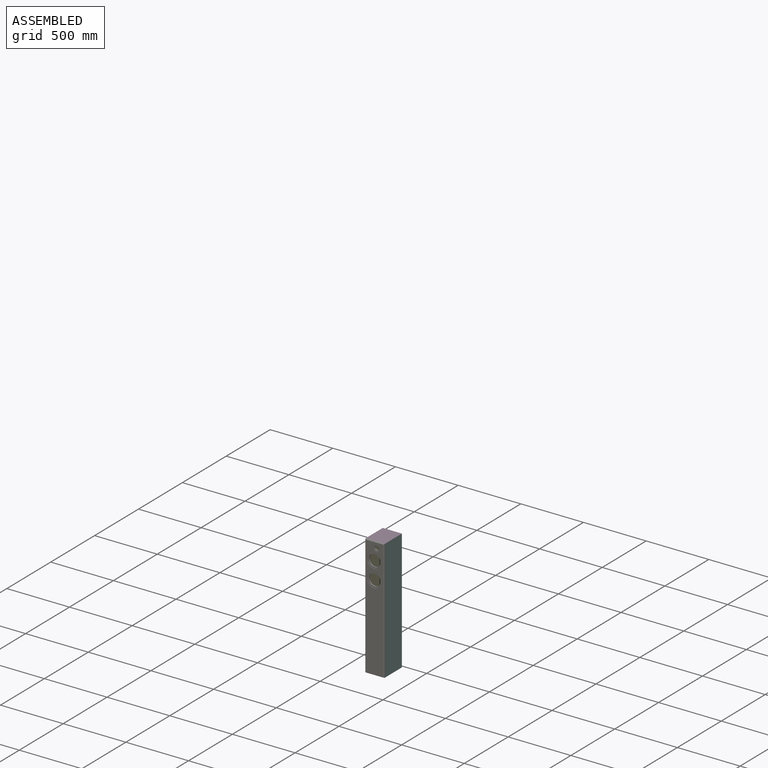
[diagram: assembled view]
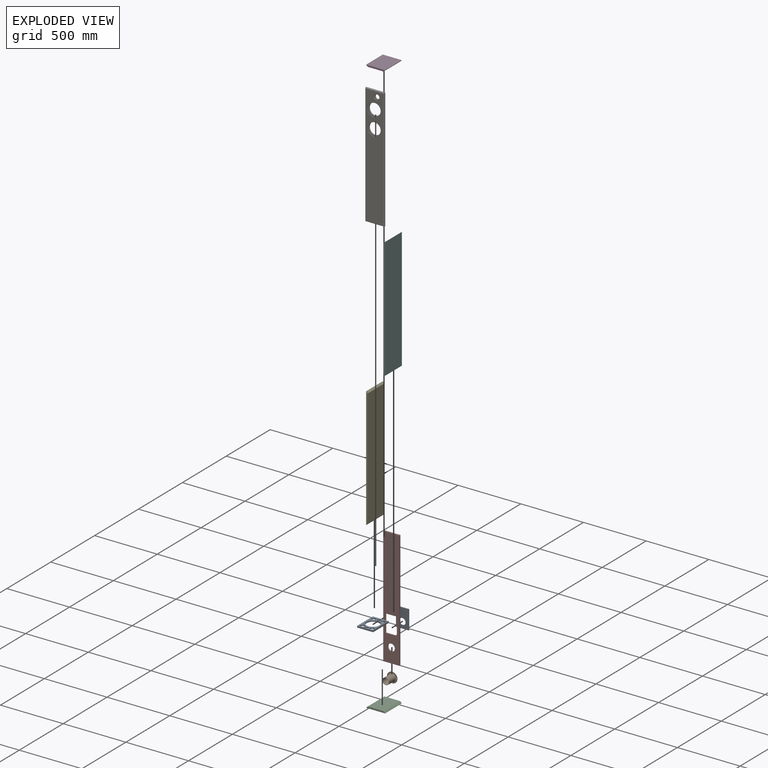
[diagram: exploded view]
GUIDED TOUR — FREECAD ASSEMBLY "Overnight Sensations TMM Cabinet"

This assembly has 9 components, labeled P0..P8 below (a component is one placed body or linked part; the same part can appear more than once), held together by 0 modeled joints plus 16 derived contact edges. A joint is a constraint between two components; its type names the relative motion it leaves free:
  CONTACT — a derived adjacency edge — the two components touch in the source model (clearance under 2% of the assembly's diagonal); it is measured from the geometry, not a modeled constraint.
Axis/direction vectors are unit vectors and 'through' points are millimeter coordinates, both in the assembly's world frame.

MATES
  1. CONTACT "contact_0_7": P0 <-> P7, contact direction (0.000, -1.000, 0.000) through (25.40, -6.35, 215.90) mm (derived from contact, not a modeled constraint)
  2. CONTACT "contact_0_8": P0 <-> P8, contact direction (0.000, 0.000, 1.000) through (27.02, -14.03, 368.30) mm (derived from contact, not a modeled constraint)
  3. CONTACT "contact_1_7": P1 <-> P7, contact direction (0.000, 0.000, 1.000) through (114.23, -3.18, 143.03) mm (derived from contact, not a modeled constraint)
  4. CONTACT "contact_2_4": P2 <-> P4, contact direction (0.000, 0.000, 1.000) through (0.00, 0.00, 0.00) mm (derived from contact, not a modeled constraint)
  5. CONTACT "contact_2_5": P2 <-> P5, contact direction (0.000, 0.000, 1.000) through (152.40, 0.00, 0.00) mm (derived from contact, not a modeled constraint)
  6. CONTACT "contact_2_6": P2 <-> P6, contact direction (0.000, 0.000, 1.000) through (0.00, -190.50, 0.00) mm (derived from contact, not a modeled constraint)
  7. CONTACT "contact_2_7": P2 <-> P7, contact direction (0.000, 0.000, 1.000) through (12.70, 0.00, 12.70) mm (derived from contact, not a modeled constraint)
  8. CONTACT "contact_3_4": P3 <-> P4, contact direction (0.000, 0.000, -1.000) through (0.00, 0.00, 965.20) mm (derived from contact, not a modeled constraint)
  9. CONTACT "contact_3_5": P3 <-> P5, contact direction (0.000, 0.000, -1.000) through (152.40, 0.00, 965.20) mm (derived from contact, not a modeled constraint)
  10. CONTACT "contact_3_6": P3 <-> P6, contact direction (0.000, -1.000, 0.000) through (152.40, -190.50, 965.20) mm (derived from contact, not a modeled constraint)
  11. CONTACT "contact_3_7": P3 <-> P7, contact direction (0.000, 0.000, -1.000) through (12.70, 0.00, 952.50) mm (derived from contact, not a modeled constraint)
  12. CONTACT "contact_4_6": P4 <-> P6, contact direction (0.000, 0.000, 1.000) through (0.00, -190.50, 0.00) mm (derived from contact, not a modeled constraint)
  13. CONTACT "contact_4_7": P4 <-> P7, contact direction (0.000, 0.000, -1.000) through (12.70, 0.00, 12.70) mm (derived from contact, not a modeled constraint)
  14. CONTACT "contact_5_6": P5 <-> P6, contact direction (0.000, -1.000, 0.000) through (152.40, -190.50, 965.20) mm (derived from contact, not a modeled constraint)
  15. CONTACT "contact_5_7": P5 <-> P7, contact direction (0.000, 0.000, -1.000) through (139.70, 0.00, 12.70) mm (derived from contact, not a modeled constraint)
  16. CONTACT "contact_7_8": P7 <-> P8, contact direction (0.000, -1.000, 0.000) through (32.96, -16.78, 365.26) mm (derived from contact, not a modeled constraint)

ASSEMBLY ORDER
  1. P7 — the base component [order verified]
  2. P8 [order verified]
  3. P4 [order verified]
  4. P5 [order verified]
  5. P0 [order verified]
  6. P6 [order verified]
  7. P1 [order verified]
  8. P2 [order verified]
  9. P3 [order verified]
(P1, P2, P4, P5 verified with a relaxed clearance tolerance: the source model stores slight part interference there.)
Order-tag legend:
  [order verified] — this step's position reverses a verified removal order: the component was checked to insert without passing through the ones already placed.

Of the 9 components, 9 carry a construction recipe — the FreeCAD feature program (sketches with constraints, then the solid features that consume them) that regenerates the part from scratch, quoted from this document or from the linked companion document it references; the rest are supplied as boundary geometry only. The tour below walks the components in assembly order: each is shown spotlighted twice — in the assembled view, then in the exploded view, where a leader line traces a displaced component back to its assembled socket (components that stay in place when exploded have no leader line; saturated green if recipe-attached, orange if geometry-only; every other component desaturated gray) — followed by its recipe or geometry summary and the mates that hold it.
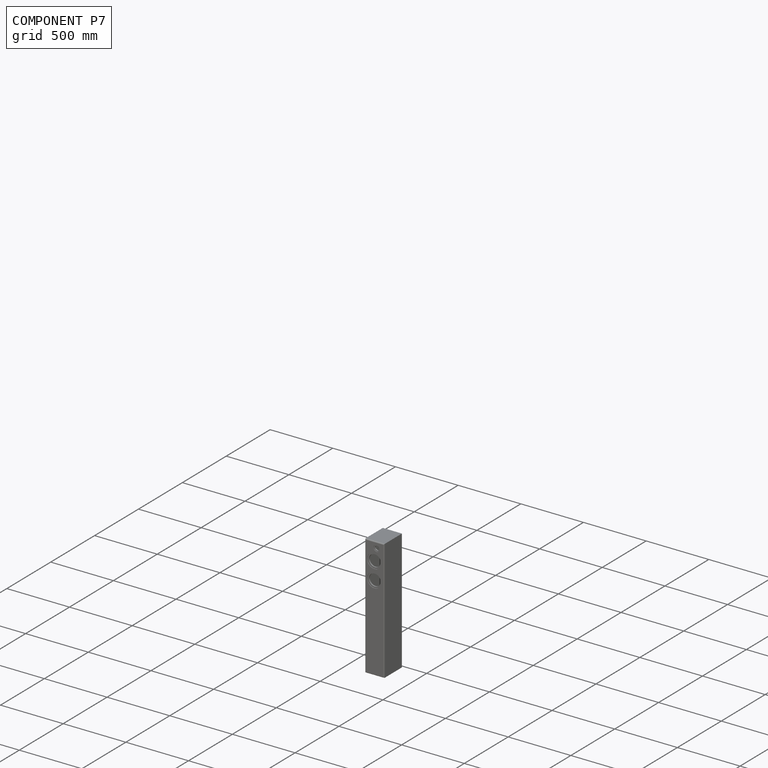
[diagram: component P7 — assembled]
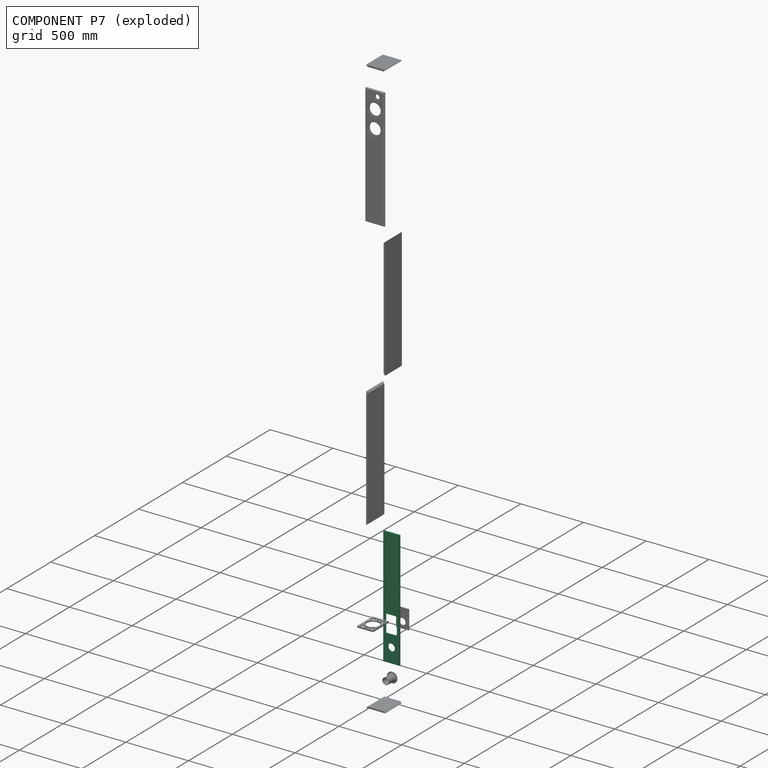
[diagram: component P7 — exploded]
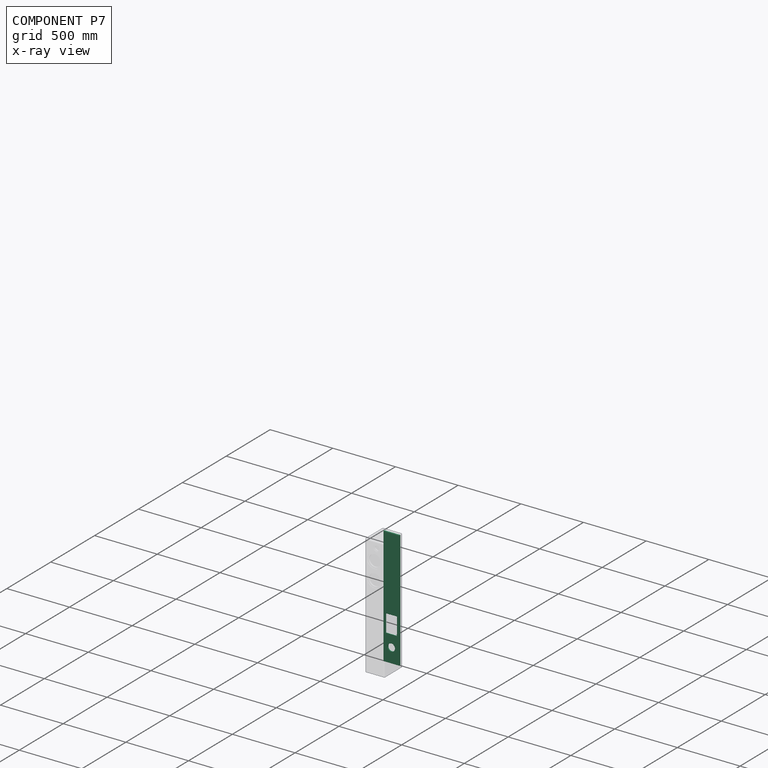
[diagram: component P7 — x-ray view]
COMPONENT P7 — recipe-attached ("back", modeled in this document).
Held by: resting contact with P0 (derived edge); resting contact with P1 (derived edge); resting contact with P2 (derived edge); resting contact with P3 (derived edge); resting contact with P4 (derived edge); resting contact with P5 (derived edge); resting contact with P8 (derived edge).
Construction recipe (the document's own serialized feature program — sketch geometry with constraints, then the solid features built on it; lengths are millimeters unless a unit is written):

FEATURE [Sketcher::SketchObject] Sketch011
  FullyConstrained = true
  MapMode = 5
  Placement = pos=(0,0,0) rot=(1,0,0;1.5708rad)
  expr: Constraints[10] = Spreadsheet.height - 2 * Spreadsheet.thickness
  expr: Constraints[9] = Spreadsheet.width - 2 * Spreadsheet.thickness
  sketch-geometry (4):
    g0: LineSegment StartX=0 StartY=0 StartZ=0 EndX=127 EndY=0 EndZ=0
    g1: LineSegment StartX=127 StartY=0 StartZ=0 EndX=127 EndY=939.8 EndZ=0
    g2: LineSegment StartX=127 StartY=939.8 StartZ=0 EndX=0 EndY=939.8 EndZ=0
    g3: LineSegment StartX=0 StartY=939.8 StartZ=0 EndX=0 EndY=0 EndZ=0
  constraints (11):
    c: Coincident(g0,g1)
    c: Coincident(g1,g2)
    c: Coincident(g2,g3)
    c: Coincident(g3,g0)
    c: Horizontal(g0)
    c: Horizontal(g2)
    c: Vertical(g1)
    c: Vertical(g3)
    c: Coincident(g0,g-1)
    c: DistanceX(g2,g2) = 127
    c: DistanceY(g1,g1) = 939.8
FEATURE [PartDesign::Pad] Pad006
  Direction = (0,-1,2e-16)
  Length = 12.7
  Length2 = 10
  Placement = pos=(0,0,0) rot=(1,0,0;1.5708rad)
  Profile = -> Sketch011
  ReferenceAxis = -> Sketch011 [N_Axis]
  Type = 0
  expr: Length = Spreadsheet.thickness
FEATURE [Sketcher::SketchObject] Sketch012
  FullyConstrained = true
  MapMode = 5
  Placement = pos=(0,-12.7,0) rot=(1,0,0;1.5708rad)
  expr: Constraints[0] = Spreadsheet.port_bottom - Spreadsheet.thickness
  expr: Constraints[1] = (Spreadsheet.width - Spreadsheet.thickness * 2) / 2
  expr: Constraints[2] = Spreadsheet.port_cutout_diameter
  expr: Constraints[4] = Spreadsheet.port_flange_diameter
  sketch-geometry (10):
    g0: Circle CenterX=63.5 CenterY=114.3 CenterZ=0 NormalX=0 NormalY=0 NormalZ=1 AngleXU=0 Radius=28.575
    g1: Circle CenterX=63.5 CenterY=114.3 CenterZ=0 NormalX=0 NormalY=0 NormalZ=1 AngleXU=0 Radius=41.275
    g2: LineSegment StartX=12.7 StartY=203.2 StartZ=0 EndX=114.3 EndY=203.2 EndZ=0
    g3: LineSegment StartX=114.3 StartY=203.2 StartZ=0 EndX=114.3 EndY=355.6 EndZ=0
    g4: LineSegment StartX=114.3 StartY=355.6 StartZ=0 EndX=12.7 EndY=355.6 EndZ=0
    g5: LineSegment StartX=12.7 StartY=355.6 StartZ=0 EndX=12.7 EndY=203.2 EndZ=0
    g6: LineSegment StartX=19.05 StartY=209.55 StartZ=0 EndX=107.95 EndY=209.55 EndZ=0
    g7: LineSegment StartX=107.95 StartY=209.55 StartZ=0 EndX=107.95 EndY=349.25 EndZ=0
    g8: LineSegment StartX=107.95 StartY=349.25 StartZ=0 EndX=19.05 EndY=349.25 EndZ=0
    g9: LineSegment StartX=19.05 StartY=349.25 StartZ=0 EndX=19.05 EndY=209.55 EndZ=0
  constraints (29):
    c: DistanceY(g-1,g0) = 114.3
    c: Distance(g0,g-2) = 63.5
    c: Diameter(g0) = 57.15
    c: Coincident(g1,g0)
    c: Diameter(g1) = 82.55
    c: Coincident(g2,g3)
    c: Coincident(g3,g4)
    c: Coincident(g4,g5)
    c: Coincident(g5,g2)
    c: Horizontal(g2)
    c: Horizontal(g4)
    c: Vertical(g3)
    c: Vertical(g5)
    c: DistanceX(g4,g4) = 101.6
    c: DistanceY(g5,g5) = 152.4
    c: DistanceY(g-1,g2) = 203.2
    c: Distance(g2,g-2) = 12.7
    c: Coincident(g6,g7)
    c: Coincident(g7,g8)
    c: Coincident(g8,g9)
    c: Coincident(g9,g6)
    c: Horizontal(g6)
    c: Horizontal(g8)
    c: Vertical(g7)
    c: Vertical(g9)
    c: Distance(g8,g5) = 6.35
    c: Distance(g2,g6) = 6.35
    c: Distance(g3,g7) = 6.35
    c: Distance(g4,g8) = 6.35
FEATURE [PartDesign::Pocket] Pocket003
  BaseFeature = -> Pad006
  Direction = (0,1,-2e-16)
  Length = 5
  Length2 = 5
  Placement = pos=(0,0,0) rot=(1,0,0;1.5708rad)
  Profile = -> Sketch012 [Edge1,Edge7,Edge10,Edge9,Edge8]
  ReferenceAxis = -> Sketch012 [N_Axis]
  Type = 1
FEATURE [PartDesign::Pocket] Pocket004
  BaseFeature = -> Pocket003
  Direction = (0,1,-2e-16)
  Length = 3.175
  Length2 = 5
  Placement = pos=(0,0,0) rot=(1,0,0;1.5708rad)
  Profile = -> Sketch012 [Edge2]
  ReferenceAxis = -> Sketch012 [N_Axis]
  Type = 0
  expr: Length = Spreadsheet.port_recess
FEATURE [PartDesign::Pocket] Pocket005
  BaseFeature = -> Pocket004
  Direction = (0,1,-2e-16)
  Length = 6.35
  Length2 = 5
  Placement = pos=(0,0,0) rot=(1,0,0;1.5708rad)
  Profile = -> Sketch012 [Edge6,Edge5,Edge4,Edge3]
  ReferenceAxis = -> Sketch012 [N_Axis]
  Type = 0
FEATURE [PartDesign::Body] Body006
  Group = -> [Sketch011,Pad006,Sketch012,Pocket003,Pocket004,Pocket005]
  Origin = -> Origin012
  Tip = -> Pocket005
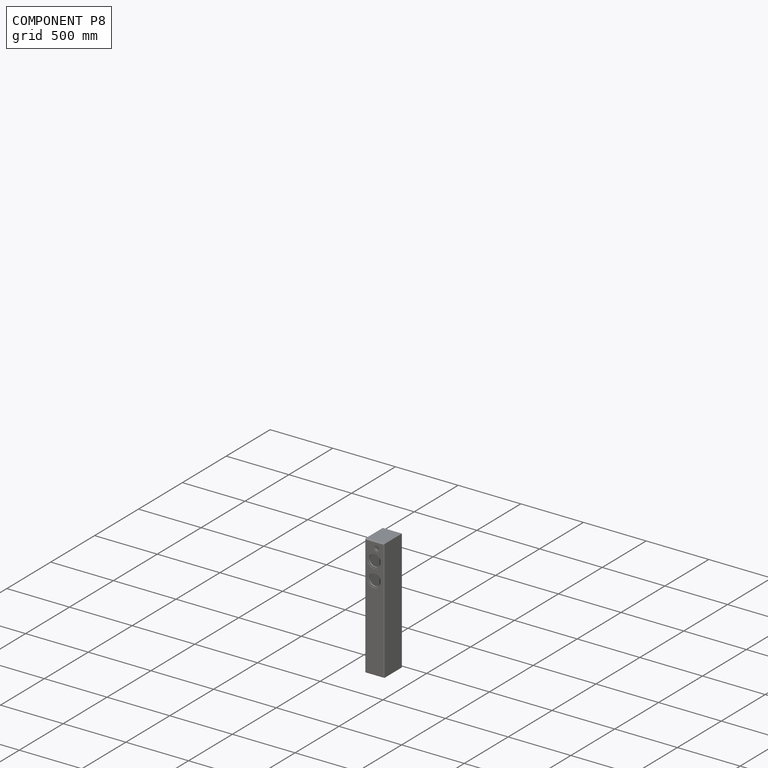
[diagram: component P8 — assembled]
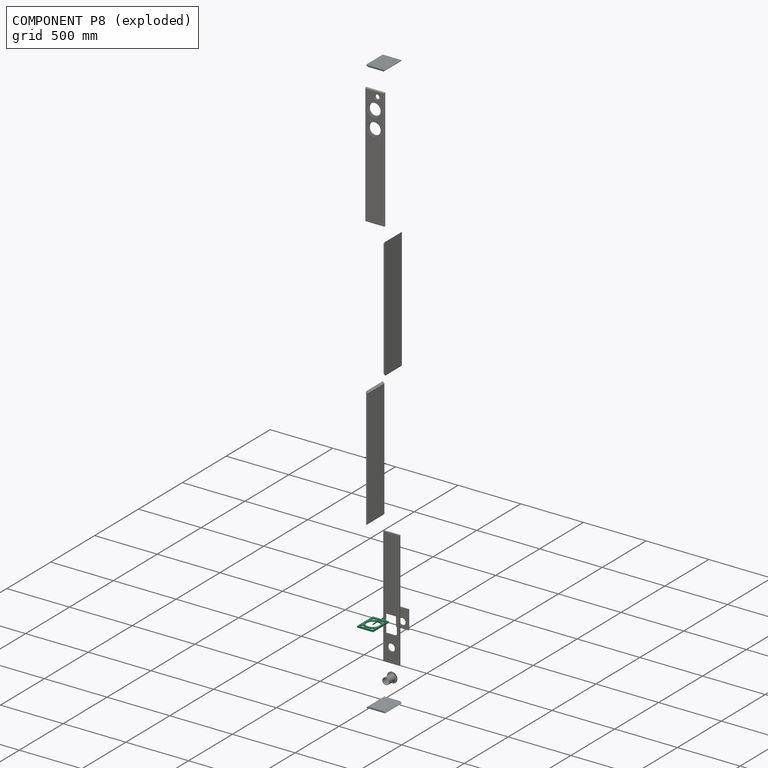
[diagram: component P8 — exploded]
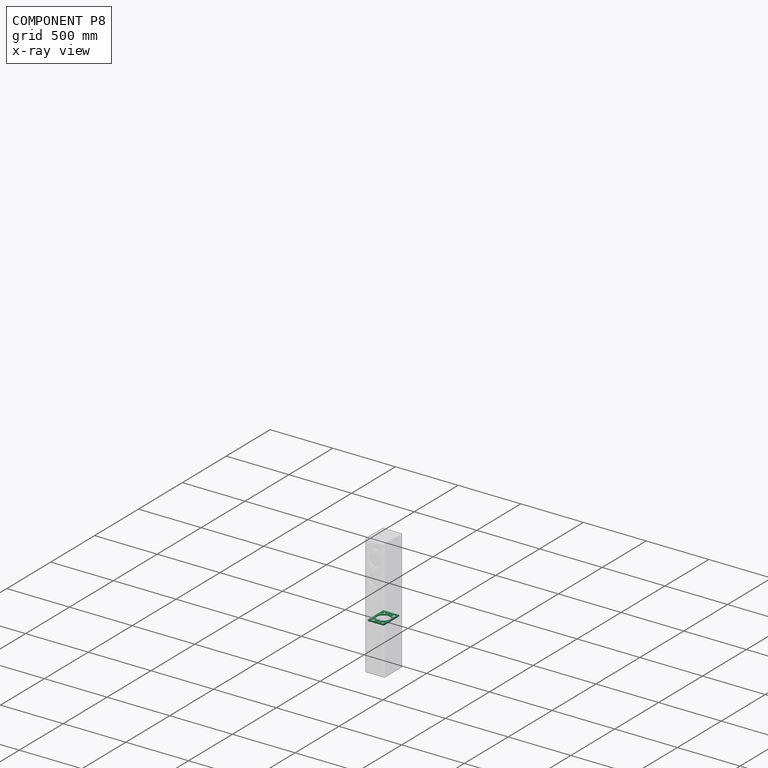
[diagram: component P8 — x-ray view]
COMPONENT P8 — recipe-attached ("window_brace", modeled in this document).
Held by: resting contact with P0 (derived edge); resting contact with P7 (derived edge).
Construction recipe (the document's own serialized feature program — sketch geometry with constraints, then the solid features built on it; lengths are millimeters unless a unit is written):

FEATURE [Sketcher::SketchObject] Sketch013
  FullyConstrained = true
  MapMode = 5
  sketch-geometry (14):
    g0: LineSegment StartX=0 StartY=0 StartZ=0 EndX=127 EndY=0 EndZ=0
    g1: LineSegment StartX=127 StartY=0 StartZ=0 EndX=127 EndY=177.8 EndZ=0
    g2: LineSegment StartX=127 StartY=177.8 StartZ=0 EndX=0 EndY=177.8 EndZ=0
    g3: LineSegment StartX=0 StartY=177.8 StartZ=0 EndX=0 EndY=0 EndZ=0
    g4: Circle CenterX=63.5 CenterY=88.9 CenterZ=0 NormalX=0 NormalY=0 NormalZ=1 AngleXU=0 Radius=50.8
    g5: Circle CenterX=25.4 CenterY=152.4 CenterZ=0 NormalX=0 NormalY=0 NormalZ=1 AngleXU=0 Radius=15.875
    g6: Circle CenterX=101.6 CenterY=152.4 CenterZ=0 NormalX=0 NormalY=0 NormalZ=1 AngleXU=0 Radius=15.875
    g7: Circle CenterX=25.4 CenterY=25.4 CenterZ=0 NormalX=0 NormalY=0 NormalZ=1 AngleXU=0 Radius=15.875
    g8: Circle CenterX=101.6 CenterY=25.4 CenterZ=0 NormalX=0 NormalY=0 NormalZ=1 AngleXU=0 Radius=15.875
    g9: Circle CenterX=63.5 CenterY=158.75 CenterZ=0 NormalX=0 NormalY=0 NormalZ=1 AngleXU=0 Radius=12.7
    g10: Circle CenterX=63.5 CenterY=19.05 CenterZ=0 NormalX=0 NormalY=0 NormalZ=1 AngleXU=0 Radius=12.7
    g11: LineSegment StartX=63.5 StartY=177.8 StartZ=0 EndX=63.5 EndY=0 EndZ=0
    g12: LineSegment StartX=63.5 StartY=139.7 StartZ=0 EndX=63.5 EndY=177.8 EndZ=0
    g13: LineSegment StartX=63.5 StartY=38.1 StartZ=0 EndX=63.5 EndY=0 EndZ=0
  constraints (37):
    c: Coincident(g0,g1)
    c: Coincident(g1,g2)
    c: Coincident(g2,g3)
    c: Coincident(g3,g0)
    c: Horizontal(g0)
    c: Horizontal(g2)
    c: Vertical(g1)
    c: Vertical(g3)
    c: Distance(g1,g3) = 127
    c: Distance(g0,g2) = 177.8
    c: Coincident(g0,g-1)
    c: Diameter(g4) = 101.6
    c: Symmetric(g2,g0,g4)
    c: Vertical(g7,g5)
    c: Horizontal(g5,g6)
    c: Vertical(g8,g6)
    c: Horizontal(g7,g8)
    c: Distance(g7,g0) = 25.4
    c: Distance(g5,g2) = 25.4
    c: Distance(g6,g1) = 25.4
    c: Distance(g5,g3) = 25.4
    c: Equal(g6,g5)
    c: Equal(g6,g7)
    c: Equal(g6,g8)
    c: Diameter(g6) = 31.75
    c: Diameter(g9) = 25.4
    c: Diameter(g10) = 25.4
    c: Vertical(g10,g9)
    c: Symmetric(g2,g2,g11)
    c: Symmetric(g0,g0,g11)
    c: PointOnObject(g9,g11)
    c: PointOnObject(g12,g4)
    c: Coincident(g12,g11)
    c: Symmetric(g12,g12,g9)
    c: PointOnObject(g13,g4)
    c: Coincident(g13,g11)
    c: Symmetric(g13,g11,g10)
FEATURE [PartDesign::Pad] Pad007
  Direction = (0,0,1)
  Length = 12.7
  Length2 = 10
  Profile = -> Sketch013
  ReferenceAxis = -> Sketch013 [N_Axis]
  Type = 0
FEATURE [PartDesign::Fillet] Fillet
  Base = -> Pad007 [Face7,Face11,Face6,Face5,Face8,Face10,Face9]
  BaseFeature = -> Pad007
  Radius = 3.048
  SupportTransform = false
  UseAllEdges = false
FEATURE [PartDesign::Body] Body007
  Group = -> [Sketch013,Pad007,Fillet]
  Origin = -> Origin014
  Tip = -> Fillet
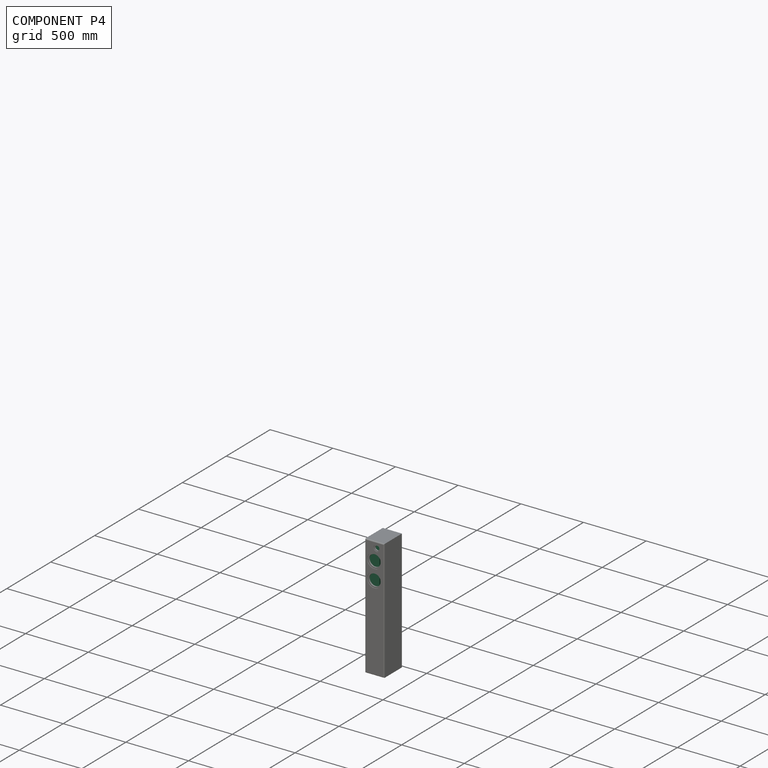
[diagram: component P4 — assembled]
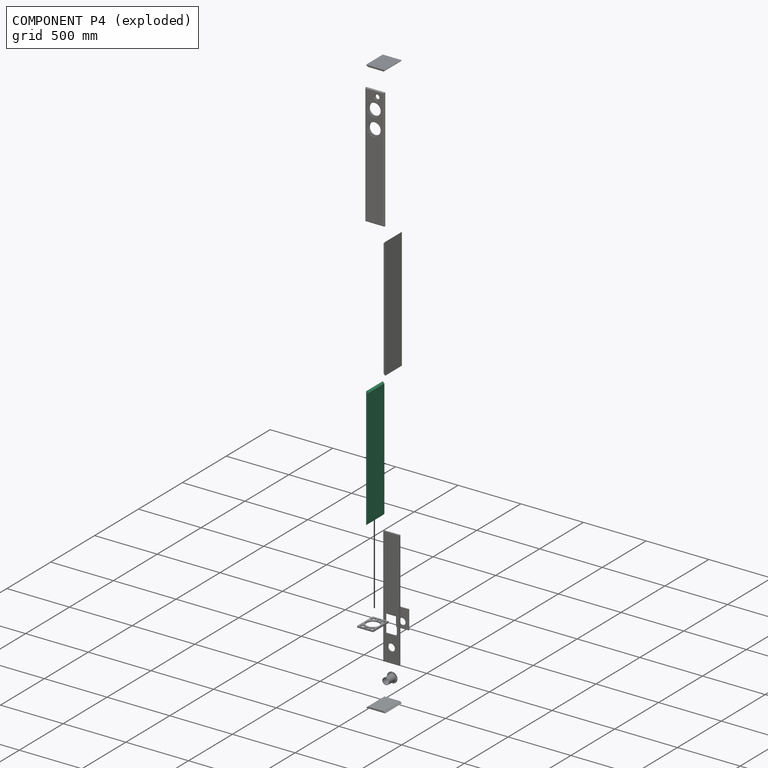
[diagram: component P4 — exploded]
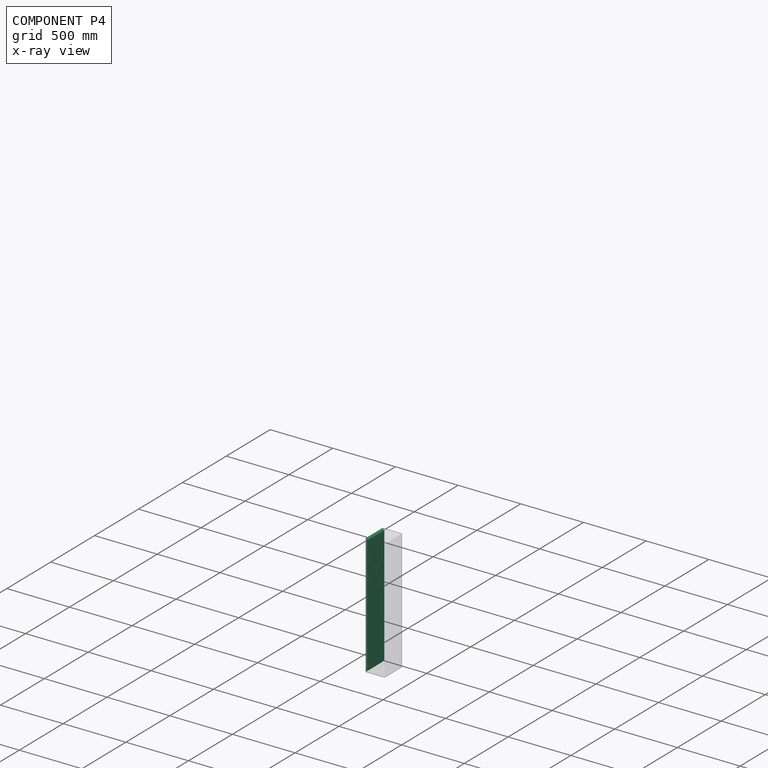
[diagram: component P4 — x-ray view]
COMPONENT P4 — recipe-attached ("left", modeled in this document).
Held by: resting contact with P2 (derived edge); resting contact with P3 (derived edge); resting contact with P6 (derived edge); resting contact with P7 (derived edge).
Construction recipe (the document's own serialized feature program — sketch geometry with constraints, then the solid features built on it; lengths are millimeters unless a unit is written):

FEATURE [Sketcher::SketchObject] Sketch006
  FullyConstrained = true
  MapMode = 5
  Placement = pos=(0,0,0) rot=(1,0,0;1.5708rad)
  expr: Constraints[1] = Spreadsheet.height
  expr: Constraints[2] = Spreadsheet.thickness
  expr: Constraints[6] = Spreadsheet.thickness
  sketch-geometry (4):
    g0: LineSegment StartX=0 StartY=965.2 StartZ=0 EndX=0 EndY=0 EndZ=0
    g1: LineSegment StartX=0 StartY=0 StartZ=0 EndX=12.7 EndY=12.7 EndZ=0
    g2: LineSegment StartX=0 StartY=965.2 StartZ=0 EndX=12.7 EndY=952.5 EndZ=0
    g3: LineSegment StartX=12.7 StartY=12.7 StartZ=0 EndX=12.7 EndY=952.5 EndZ=0
  constraints (11):
    c: Vertical(g0)
    c: DistanceY(g0,g0) = 965.2
    c: DistanceY(g2,g0) = 12.7
    c: Coincident(g3,g1)
    c: Coincident(g3,g2)
    c: Vertical(g3)
    c: DistanceX(g0,g1) = 12.7
    c: Angle(g1,g0) = 0.785398
    c: Coincident(g0,g2)
    c: Coincident(g0,g1)
    c: Coincident(g0,g-1)
FEATURE [PartDesign::Pad] Pad
  Direction = (0,-1,2e-16)
  Length = 190.5
  Length2 = 10
  Placement = pos=(0,0,0) rot=(1,0,0;1.5708rad)
  Profile = -> Sketch006
  ReferenceAxis = -> Sketch006 [N_Axis]
  Type = 0
  expr: Length = Spreadsheet.depth - Spreadsheet.thickness
FEATURE [PartDesign::Body] Body
  Group = -> [Sketch006,Pad]
  Origin = -> Origin006
  Tip = -> Pad
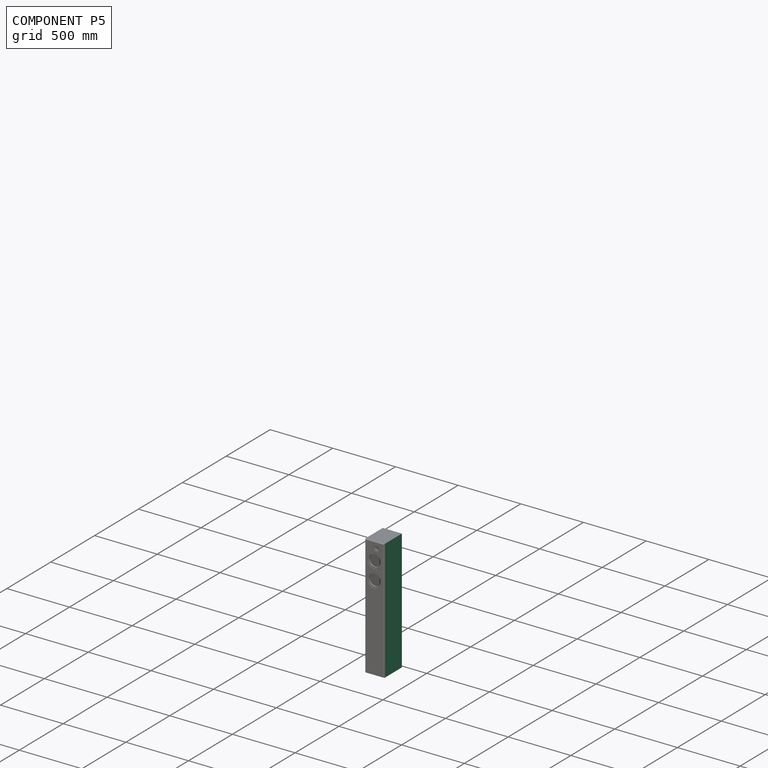
[diagram: component P5 — assembled]
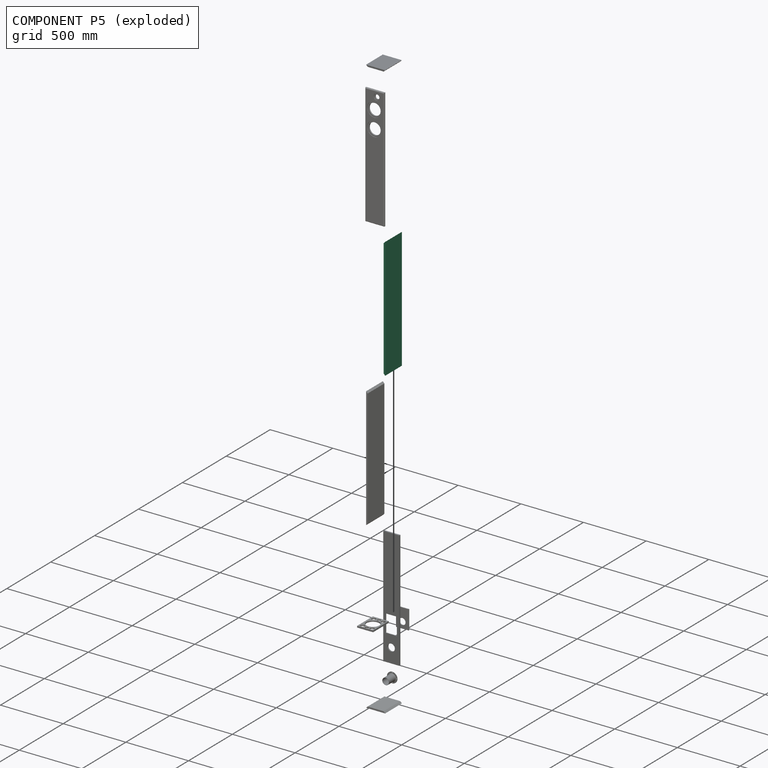
[diagram: component P5 — exploded]
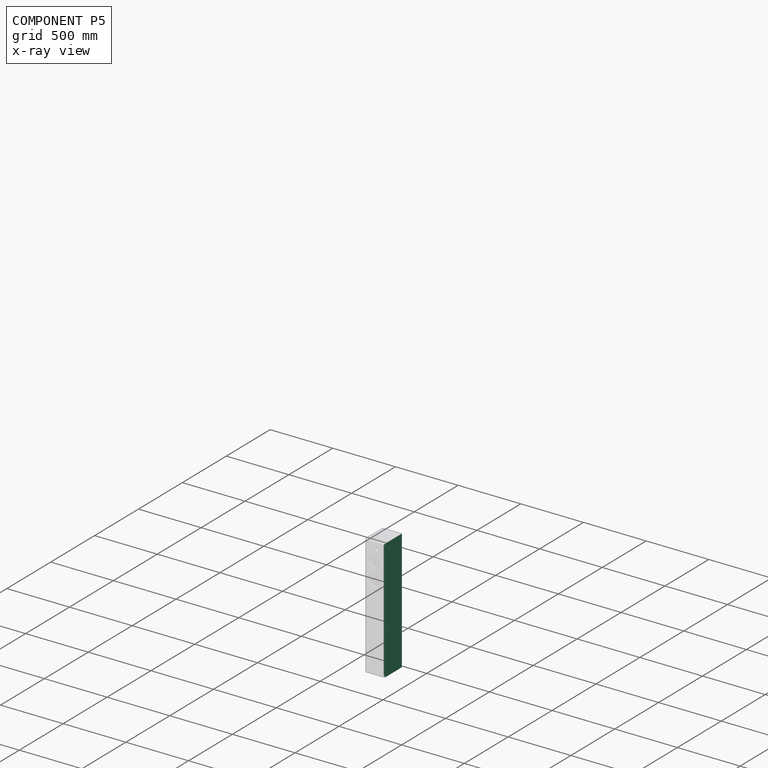
[diagram: component P5 — x-ray view]
COMPONENT P5 — recipe-attached ("right", modeled in this document).
Held by: resting contact with P2 (derived edge); resting contact with P3 (derived edge); resting contact with P6 (derived edge); resting contact with P7 (derived edge).
Construction recipe (the document's own serialized feature program — sketch geometry with constraints, then the solid features built on it; lengths are millimeters unless a unit is written):

FEATURE [Sketcher::SketchObject] Sketch007
  FullyConstrained = true
  MapMode = 5
  Placement = pos=(0,0,0) rot=(1,0,0;1.5708rad)
  expr: Constraints[1] = Spreadsheet.height
  expr: Constraints[2] = Spreadsheet.thickness
  expr: Constraints[6] = Spreadsheet.thickness
  sketch-geometry (4):
    g0: LineSegment StartX=0 StartY=965.2 StartZ=0 EndX=0 EndY=0 EndZ=0
    g1: LineSegment StartX=0 StartY=0 StartZ=0 EndX=12.7 EndY=12.7 EndZ=0
    g2: LineSegment StartX=0 StartY=965.2 StartZ=0 EndX=12.7 EndY=952.5 EndZ=0
    g3: LineSegment StartX=12.7 StartY=12.7 StartZ=0 EndX=12.7 EndY=952.5 EndZ=0
  constraints (11):
    c: Vertical(g0)
    c: DistanceY(g0,g0) = 965.2
    c: DistanceY(g2,g0) = 12.7
    c: Coincident(g3,g1)
    c: Coincident(g3,g2)
    c: Vertical(g3)
    c: DistanceX(g0,g1) = 12.7
    c: Angle(g1,g0) = 0.785398
    c: Coincident(g0,g2)
    c: Coincident(g0,g1)
    c: Coincident(g0,g-1)
FEATURE [PartDesign::Pad] Pad004
  Direction = (0,-1,2e-16)
  Length = 190.5
  Length2 = 10
  Placement = pos=(0,0,0) rot=(1,0,0;1.5708rad)
  Profile = -> Sketch007
  ReferenceAxis = -> Sketch007 [N_Axis]
  Type = 0
  expr: Length = Spreadsheet.depth - Spreadsheet.thickness
FEATURE [PartDesign::Body] Body004
  Group = -> [Sketch007,Pad004]
  Origin = -> Origin008
  Tip = -> Pad004
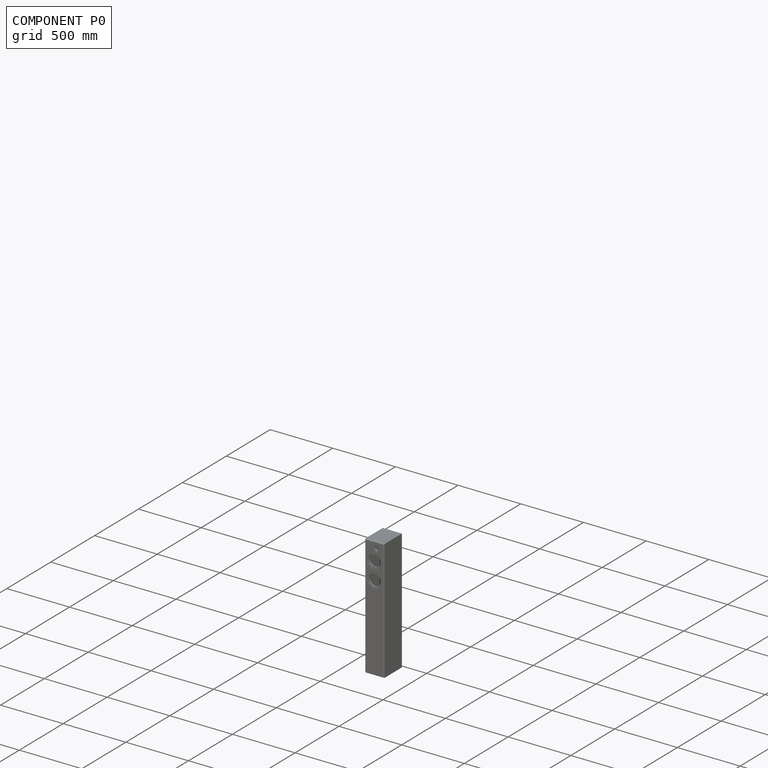
[diagram: component P0 — assembled]
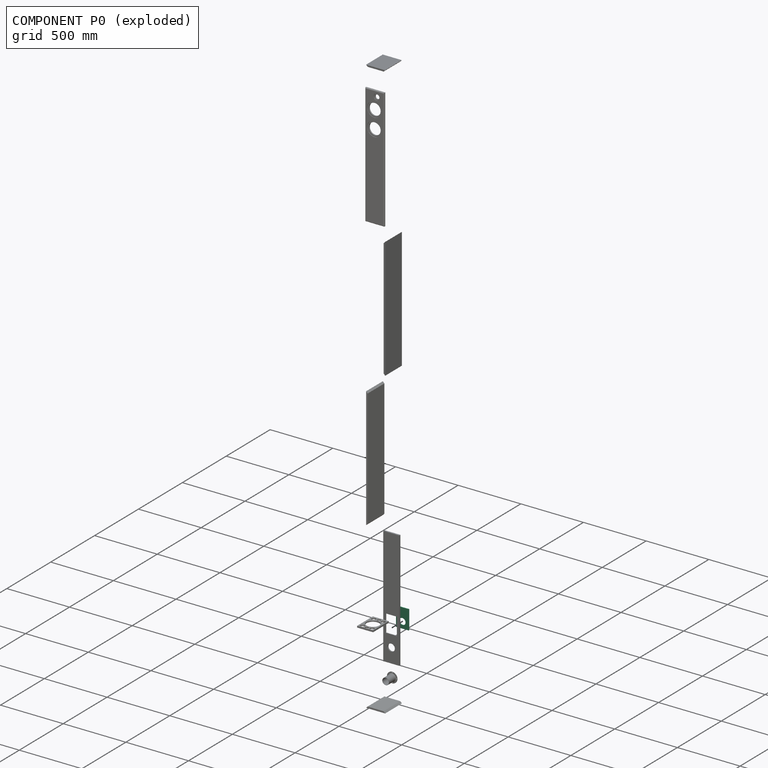
[diagram: component P0 — exploded]
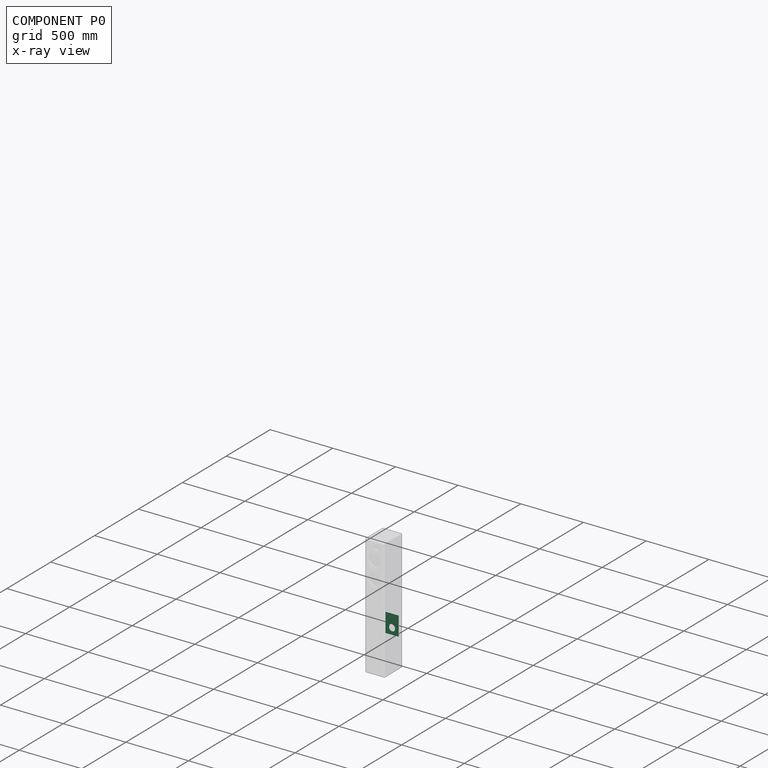
[diagram: component P0 — x-ray view]
COMPONENT P0 — recipe-attached ("terminal_cover", modeled in this document).
Held by: resting contact with P7 (derived edge); resting contact with P8 (derived edge).
Construction recipe (the document's own serialized feature program — sketch geometry with constraints, then the solid features built on it; lengths are millimeters unless a unit is written):

FEATURE [Sketcher::SketchObject] Sketch
  FullyConstrained = true
  MapMode = 5
  Placement = pos=(0,0,0) rot=(1,0,0;1.5708rad)
  sketch-geometry (5):
    g0: LineSegment StartX=0 StartY=0 StartZ=0 EndX=101.6 EndY=0 EndZ=0
    g1: LineSegment StartX=101.6 StartY=0 StartZ=0 EndX=101.6 EndY=152.4 EndZ=0
    g2: LineSegment StartX=101.6 StartY=152.4 StartZ=0 EndX=0 EndY=152.4 EndZ=0
    g3: LineSegment StartX=0 StartY=152.4 StartZ=0 EndX=0 EndY=0 EndZ=0
    g4: Circle CenterX=50.8 CenterY=50.8 CenterZ=0 NormalX=0 NormalY=0 NormalZ=1 AngleXU=0 Radius=25.4
  constraints (14):
    c: Coincident(g0,g1)
    c: Coincident(g1,g2)
    c: Coincident(g2,g3)
    c: Coincident(g3,g0)
    c: Horizontal(g0)
    c: Horizontal(g2)
    c: Vertical(g1)
    c: Vertical(g3)
    c: Distance(g1,g3) = 101.6
    c: Distance(g0,g2) = 152.4
    c: Coincident(g0,g-1)
    c: Diameter(g4) = 50.8
    c: DistanceY(g-1,g4) = 50.8
    c: Distance(g4,g1) = 50.8
FEATURE [PartDesign::Pad] Pad008
  Direction = (0,-1,2e-16)
  Length = 6.35
  Length2 = 10
  Placement = pos=(0,0,0) rot=(1,0,0;1.5708rad)
  Profile = -> Sketch
  ReferenceAxis = -> Sketch [N_Axis]
  Type = 0
FEATURE [PartDesign::Body] Body008  label="terminal_cover"
  Group = -> [Sketch,Pad008]
  Origin = -> Origin015
  Placement = pos=(25.4,0,215.9) rot=(0,0,1;0rad)
  Tip = -> Pad008
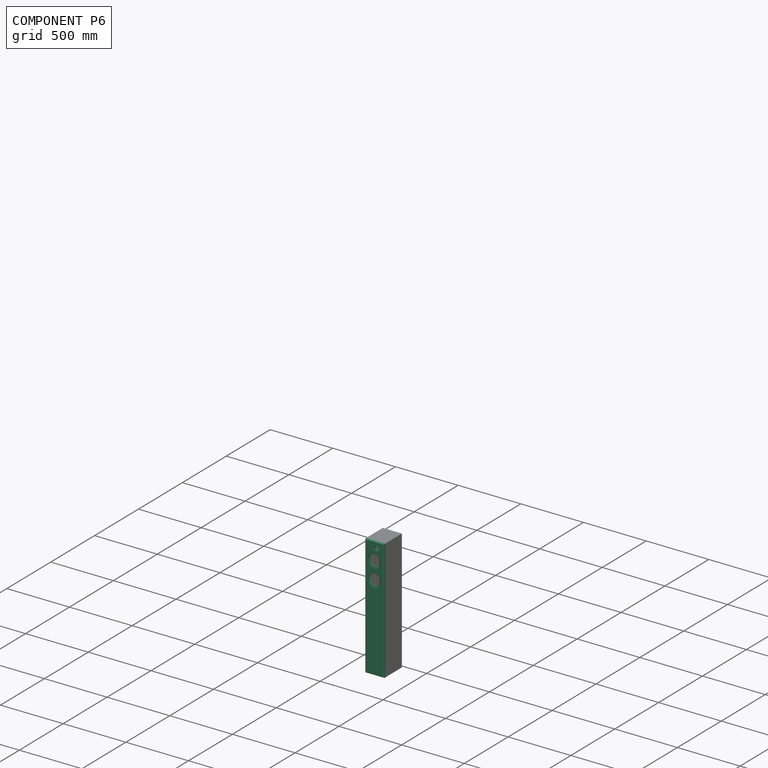
[diagram: component P6 — assembled]
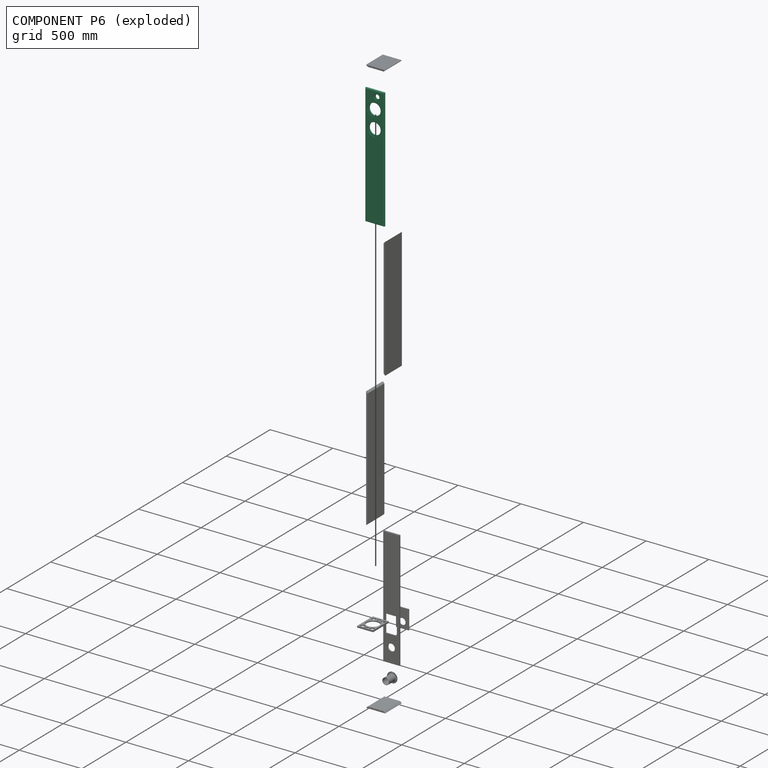
[diagram: component P6 — exploded]
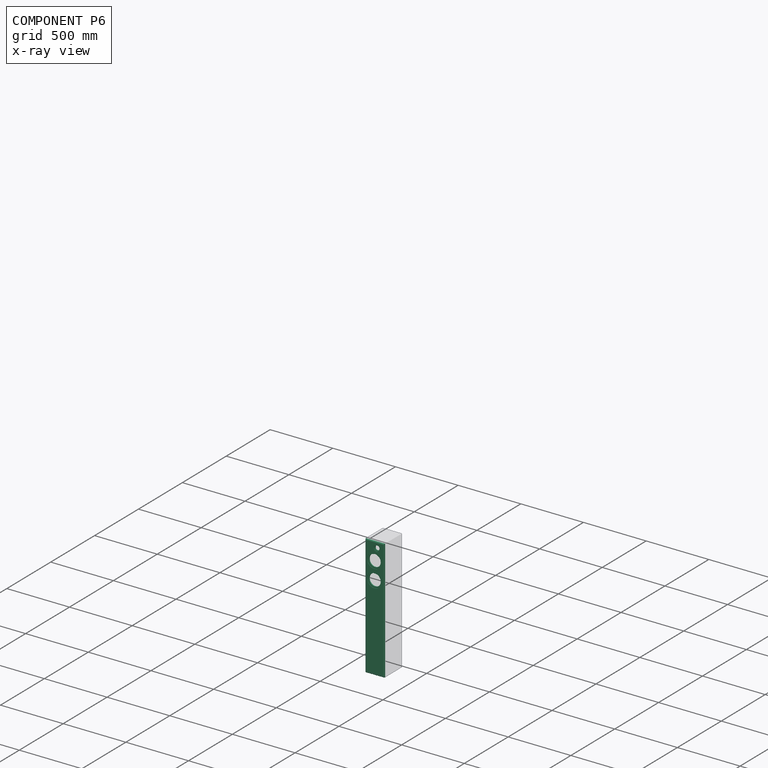
[diagram: component P6 — x-ray view]
COMPONENT P6 — recipe-attached ("baffle", modeled in this document).
Held by: resting contact with P2 (derived edge); resting contact with P3 (derived edge); resting contact with P4 (derived edge); resting contact with P5 (derived edge).
Construction recipe (the document's own serialized feature program — sketch geometry with constraints, then the solid features built on it; lengths are millimeters unless a unit is written):

FEATURE [Sketcher::SketchObject] Sketch009
  FullyConstrained = true
  MapMode = 5
  Placement = pos=(0,-12.7,0) rot=(1,0,0;1.5708rad)
  expr: Constraints[10] = Spreadsheet.height
  expr: Constraints[11] = Spreadsheet.tweeter_cutout
  expr: Constraints[12] = Spreadsheet.driver_cutout
  expr: Constraints[13] = Spreadsheet.driver_cutout
  expr: Constraints[14] = Spreadsheet.tweeter_top
  expr: Constraints[15] = Spreadsheet.mid_top
  expr: Constraints[16] = Spreadsheet.low_top
  expr: Constraints[17] = Spreadsheet.width * 0.625
  expr: Constraints[18] = Spreadsheet.tweeter_diameter
  expr: Constraints[21] = Spreadsheet.driver_diameter
  expr: Constraints[23] = Spreadsheet.driver_diameter
  expr: Constraints[24] = Spreadsheet.width / 2
  expr: Constraints[25] = Spreadsheet.width / 2
  expr: Constraints[9] = Spreadsheet.width
  sketch-geometry (10):
    g0: LineSegment StartX=0 StartY=0 StartZ=0 EndX=152.4 EndY=0 EndZ=0
    g1: LineSegment StartX=152.4 StartY=0 StartZ=0 EndX=152.4 EndY=965.2 EndZ=0
    g2: LineSegment StartX=152.4 StartY=965.2 StartZ=0 EndX=0 EndY=965.2 EndZ=0
    g3: LineSegment StartX=0 StartY=965.2 StartZ=0 EndX=0 EndY=0 EndZ=0
    g4: Circle CenterX=76.2 CenterY=825.5 CenterZ=0 NormalX=0 NormalY=0 NormalZ=1 AngleXU=0 Radius=46.482
    g5: Circle CenterX=76.2 CenterY=685.8 CenterZ=0 NormalX=0 NormalY=0 NormalZ=1 AngleXU=0 Radius=46.482
    g6: Circle CenterX=95.25 CenterY=920.75 CenterZ=0 NormalX=0 NormalY=0 NormalZ=1 AngleXU=0 Radius=17.5895
    g7: Circle CenterX=95.25 CenterY=920.75 CenterZ=0 NormalX=0 NormalY=0 NormalZ=1 AngleXU=0 Radius=25.4
    g8: Circle CenterX=76.2 CenterY=825.5 CenterZ=0 NormalX=0 NormalY=0 NormalZ=1 AngleXU=0 Radius=58.293
    g9: Circle CenterX=76.2 CenterY=685.8 CenterZ=0 NormalX=0 NormalY=0 NormalZ=1 AngleXU=0 Radius=58.293
  constraints (26):
    c: Coincident(g0,g1)
    c: Coincident(g1,g2)
    c: Coincident(g2,g3)
    c: Coincident(g3,g0)
    c: Horizontal(g0)
    c: Horizontal(g2)
    c: Vertical(g1)
    c: Vertical(g3)
    c: Coincident(g0,g-1)
    c: DistanceX(g2,g2) = 152.4
    c: DistanceY(g1,g1) = 965.2
    c: Diameter(g6) = 35.179
    c: Diameter(g4) = 92.964
    c: Diameter(g5) = 92.964
    c: Distance(g6,g2) = 44.45
    c: Distance(g4,g2) = 139.7
    c: Distance(g5,g2) = 279.4
    c: Distance(g6,g3) = 95.25
    c: Diameter(g7) = 50.8
    c: Coincident(g7,g6)
    c: Coincident(g8,g4)
    c: Diameter(g8) = 116.586
    c: Coincident(g9,g5)
    c: Diameter(g9) = 116.586
    c: DistanceX(g2,g4) = 76.2
    c: Distance(g5,g3) = 76.2
FEATURE [Sketcher::SketchObject] Sketch010
  FullyConstrained = true
  MapMode = 5
  Placement = pos=(0,0,0) rot=(1,0,0;1.5708rad)
  expr: Constraints[10] = Spreadsheet.height
  expr: Constraints[9] = Spreadsheet.width
  sketch-geometry (4):
    g0: LineSegment StartX=0 StartY=0 StartZ=0 EndX=152.4 EndY=0 EndZ=0
    g1: LineSegment StartX=152.4 StartY=0 StartZ=0 EndX=152.4 EndY=965.2 EndZ=0
    g2: LineSegment StartX=152.4 StartY=965.2 StartZ=0 EndX=0 EndY=965.2 EndZ=0
    g3: LineSegment StartX=0 StartY=965.2 StartZ=0 EndX=0 EndY=0 EndZ=0
  constraints (11):
    c: Coincident(g0,g1)
    c: Coincident(g1,g2)
    c: Coincident(g2,g3)
    c: Coincident(g3,g0)
    c: Horizontal(g0)
    c: Horizontal(g2)
    c: Vertical(g1)
    c: Vertical(g3)
    c: Coincident(g0,g-1)
    c: DistanceX(g2,g2) = 152.4
    c: DistanceY(g1,g1) = 965.2
FEATURE [PartDesign::Pad] Pad005
  Direction = (0,-1,2e-16)
  Length = 12.7
  Length2 = 10
  Placement = pos=(0,0,0) rot=(1,0,0;1.5708rad)
  Profile = -> Sketch010
  ReferenceAxis = -> Sketch010 [N_Axis]
  Type = 0
  expr: Length = Spreadsheet.thickness
FEATURE [PartDesign::Pocket] Pocket
  BaseFeature = -> Pad005
  Direction = (0,1,-2e-16)
  Length = 5
  Length2 = 5
  Placement = pos=(0,0,0) rot=(1,0,0;1.5708rad)
  Profile = -> Sketch009 [Edge7,Edge5,Edge6]
  ReferenceAxis = -> Sketch009 [N_Axis]
  Type = 1
FEATURE [PartDesign::Pocket] Pocket001
  BaseFeature = -> Pocket
  Direction = (0,1,-2e-16)
  Length = 3.175
  Length2 = 5
  Placement = pos=(0,0,0) rot=(1,0,0;1.5708rad)
  Profile = -> Sketch009 [Edge9,Edge10]
  ReferenceAxis = -> Sketch009 [N_Axis]
  Type = 0
  expr: Length = Spreadsheet.driver_recess
FEATURE [PartDesign::Pocket] Pocket002
  BaseFeature = -> Pocket001
  Direction = (0,1,-2e-16)
  Length = 3.175
  Length2 = 5
  Placement = pos=(0,0,0) rot=(1,0,0;1.5708rad)
  Profile = -> Sketch009 [Edge8]
  ReferenceAxis = -> Sketch009 [N_Axis]
  Type = 0
  expr: Length = Spreadsheet.tweeter_recess
FEATURE [PartDesign::Fillet] Fillet002
  Base = -> Pocket002 [Edge15,Edge10,Edge7,Edge4]
  BaseFeature = -> Pocket002
  Placement = pos=(0,0,0) rot=(1,0,0;1.5708rad)
  Radius = 6.35
  SupportTransform = false
  UseAllEdges = false
FEATURE [PartDesign::Body] Body005
  Group = -> [Sketch009,Sketch010,Pad005,Pocket,Pocket001,Pocket002,Fillet002]
  Origin = -> Origin010
  Tip = -> Fillet002
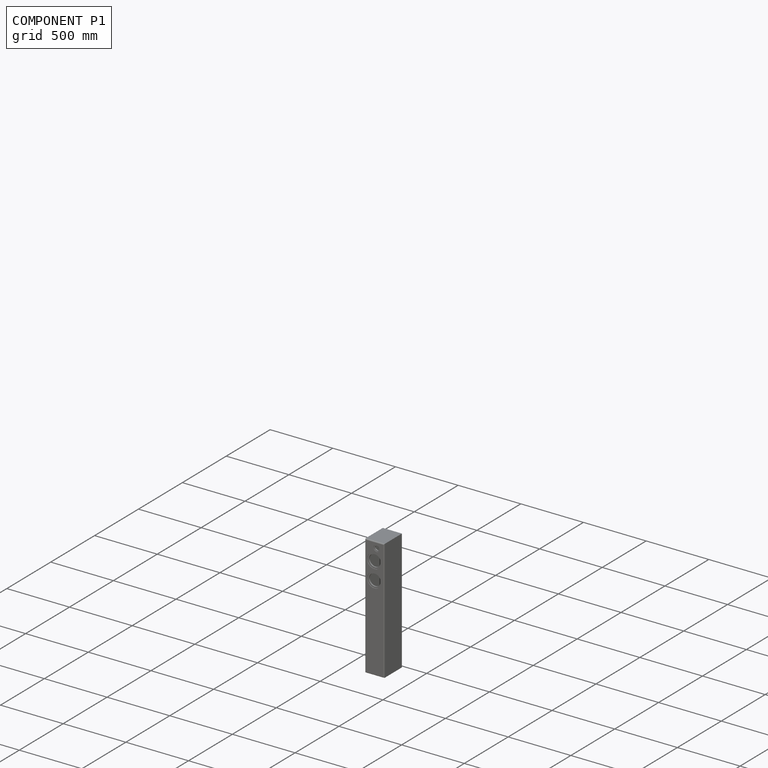
[diagram: component P1 — assembled]
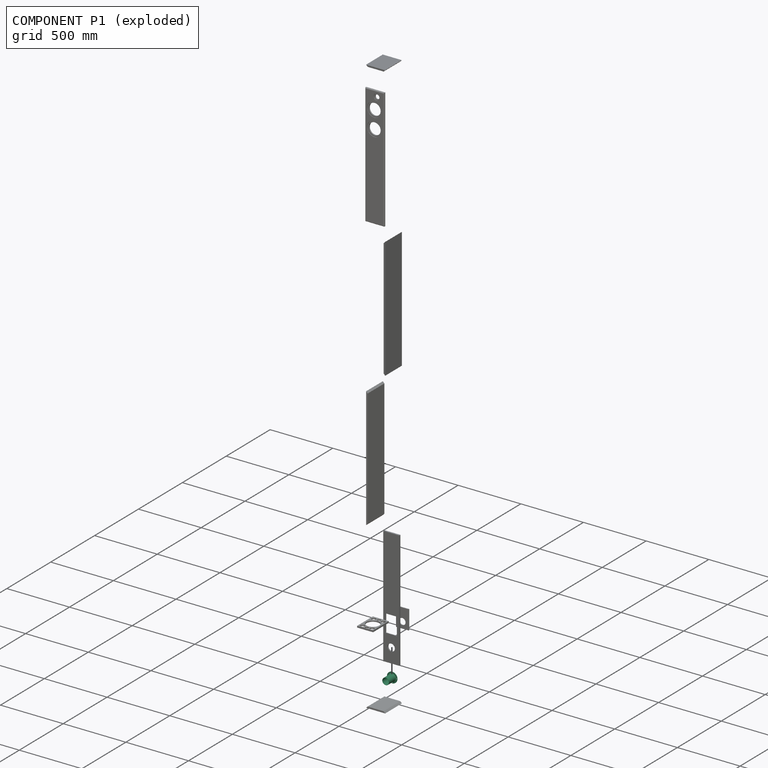
[diagram: component P1 — exploded]
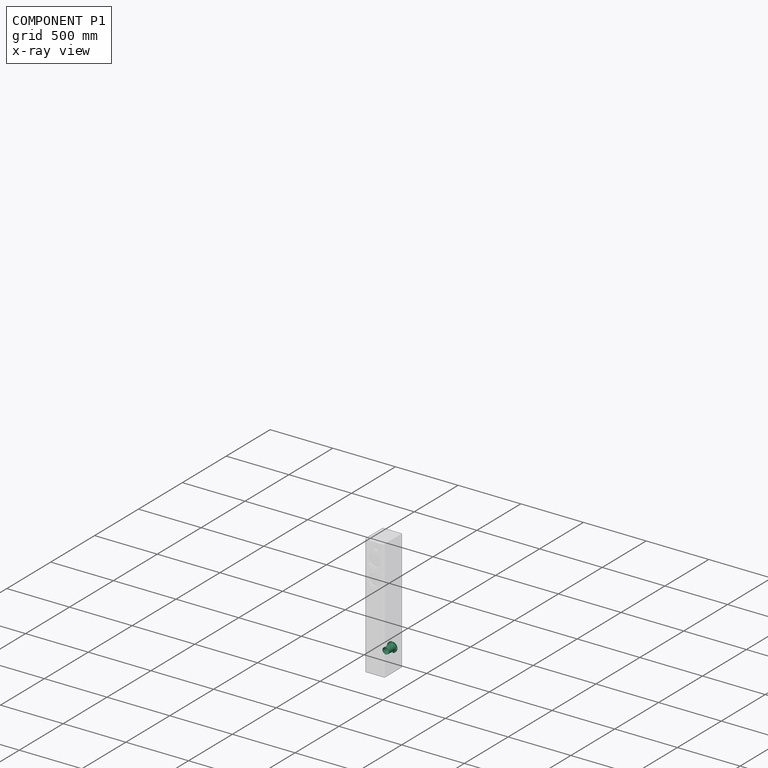
[diagram: component P1 — x-ray view]
COMPONENT P1 — recipe-attached ("2x3 port", modeled in this document).
Held by: resting contact with P7 (derived edge).
Construction recipe (the document's own serialized feature program — sketch geometry with constraints, then the solid features built on it; lengths are millimeters unless a unit is written):

FEATURE [Sketcher::SketchObject] Sketch006
  FullyConstrained = true
  MapMode = 5
  Placement = pos=(0,0,0) rot=(1,0,0;1.5708rad)
  expr: Constraints[1] = Spreadsheet.height
  expr: Constraints[2] = Spreadsheet.thickness
  expr: Constraints[6] = Spreadsheet.thickness
  sketch-geometry (4):
    g0: LineSegment StartX=0 StartY=965.2 StartZ=0 EndX=0 EndY=0 EndZ=0
    g1: LineSegment StartX=0 StartY=0 StartZ=0 EndX=12.7 EndY=12.7 EndZ=0
    g2: LineSegment StartX=0 StartY=965.2 StartZ=0 EndX=12.7 EndY=952.5 EndZ=0
    g3: LineSegment StartX=12.7 StartY=12.7 StartZ=0 EndX=12.7 EndY=952.5 EndZ=0
  constraints (11):
    c: Vertical(g0)
    c: DistanceY(g0,g0) = 965.2
    c: DistanceY(g2,g0) = 12.7
    c: Coincident(g3,g1)
    c: Coincident(g3,g2)
    c: Vertical(g3)
    c: DistanceX(g0,g1) = 12.7
    c: Angle(g1,g0) = 0.785398
    c: Coincident(g0,g2)
    c: Coincident(g0,g1)
    c: Coincident(g0,g-1)
FEATURE [PartDesign::Pad] Pad
  Direction = (0,-1,2e-16)
  Length = 190.5
  Length2 = 10
  Placement = pos=(0,0,0) rot=(1,0,0;1.5708rad)
  Profile = -> Sketch006
  ReferenceAxis = -> Sketch006 [N_Axis]
  Type = 0
  expr: Length = Spreadsheet.depth - Spreadsheet.thickness
FEATURE [PartDesign::Body] Body
  Group = -> [Sketch006,Pad]
  Origin = -> Origin006
  Tip = -> Pad
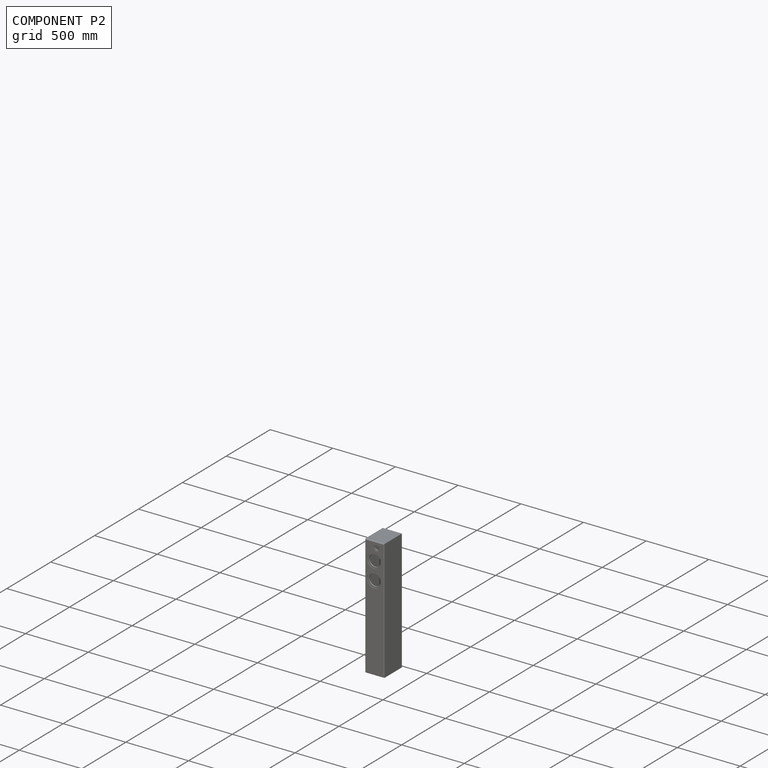
[diagram: component P2 — assembled]
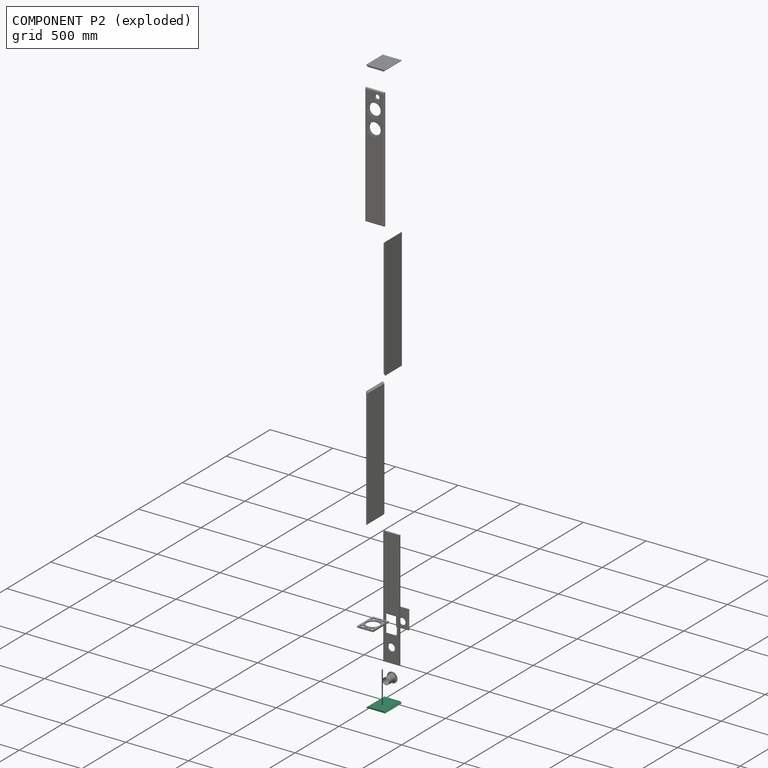
[diagram: component P2 — exploded]
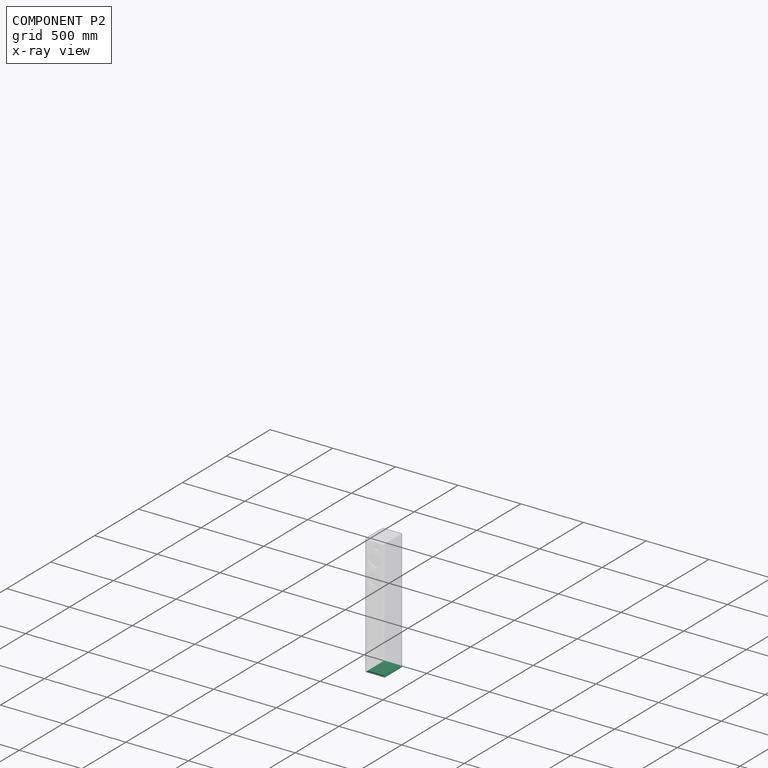
[diagram: component P2 — x-ray view]
COMPONENT P2 — recipe-attached ("bottom", modeled in this document).
Held by: resting contact with P4 (derived edge); resting contact with P5 (derived edge); resting contact with P6 (derived edge); resting contact with P7 (derived edge).
Construction recipe (the document's own serialized feature program — sketch geometry with constraints, then the solid features built on it; lengths are millimeters unless a unit is written):

FEATURE [Sketcher::SketchObject] Sketch004
  FullyConstrained = true
  MapMode = 5
  Placement = pos=(0,0,0) rot=(1,0,0;1.5708rad)
  expr: Constraints[10] = Spreadsheet.width
  expr: Constraints[7] = Spreadsheet.thickness
  expr: Constraints[8] = Spreadsheet.thickness
  expr: Constraints[9] = Spreadsheet.thickness
  sketch-geometry (4):
    g0: LineSegment StartX=0 StartY=0 StartZ=0 EndX=152.4 EndY=0 EndZ=0
    g1: LineSegment StartX=0 StartY=0 StartZ=0 EndX=12.7 EndY=12.7 EndZ=0
    g2: LineSegment StartX=152.4 StartY=0 StartZ=0 EndX=139.7 EndY=12.7 EndZ=0
    g3: LineSegment StartX=12.7 StartY=12.7 StartZ=0 EndX=139.7 EndY=12.7 EndZ=0
  constraints (11):
    c: Horizontal(g0)
    c: Coincident(g0,g-1)
    c: Coincident(g1,g0)
    c: Coincident(g2,g0)
    c: Coincident(g3,g1)
    c: Coincident(g3,g2)
    c: Horizontal(g3)
    c: DistanceY(g-1,g1) = 12.7
    c: DistanceX(g0,g1) = 12.7
    c: DistanceX(g2,g0) = 12.7
    c: DistanceX(g0,g0) = 152.4
FEATURE [PartDesign::Pad] Pad002
  Direction = (0,-1,2e-16)
  Length = 190.5
  Length2 = 10
  Placement = pos=(0,0,0) rot=(1,0,0;1.5708rad)
  Profile = -> Sketch004
  ReferenceAxis = -> Sketch004 [N_Axis]
  Type = 0
  expr: Length = Spreadsheet.depth - Spreadsheet.thickness
FEATURE [PartDesign::Body] Body002
  Group = -> [Sketch004,Pad002]
  Origin = -> Origin002
  Tip = -> Pad002
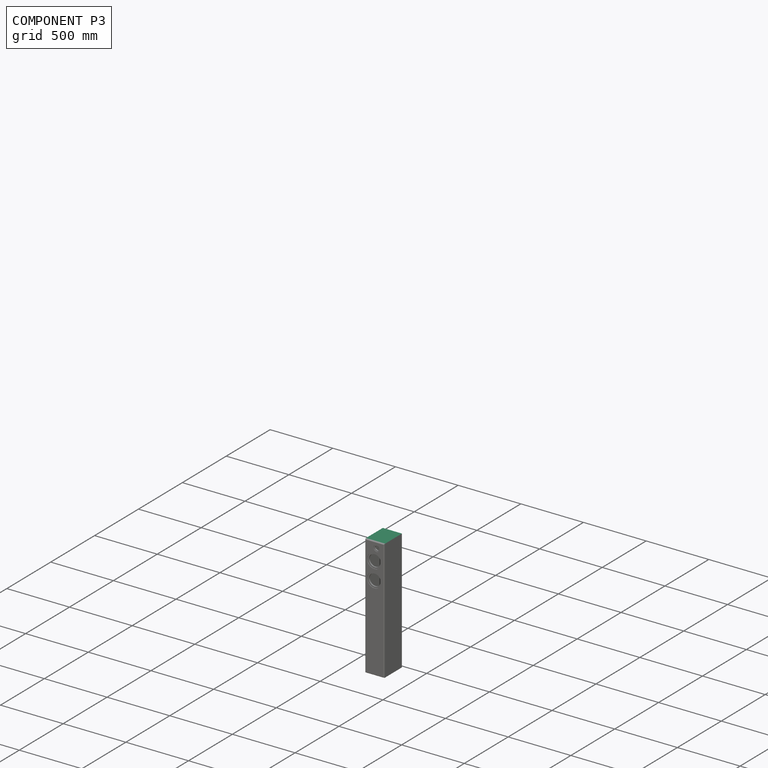
[diagram: component P3 — assembled]
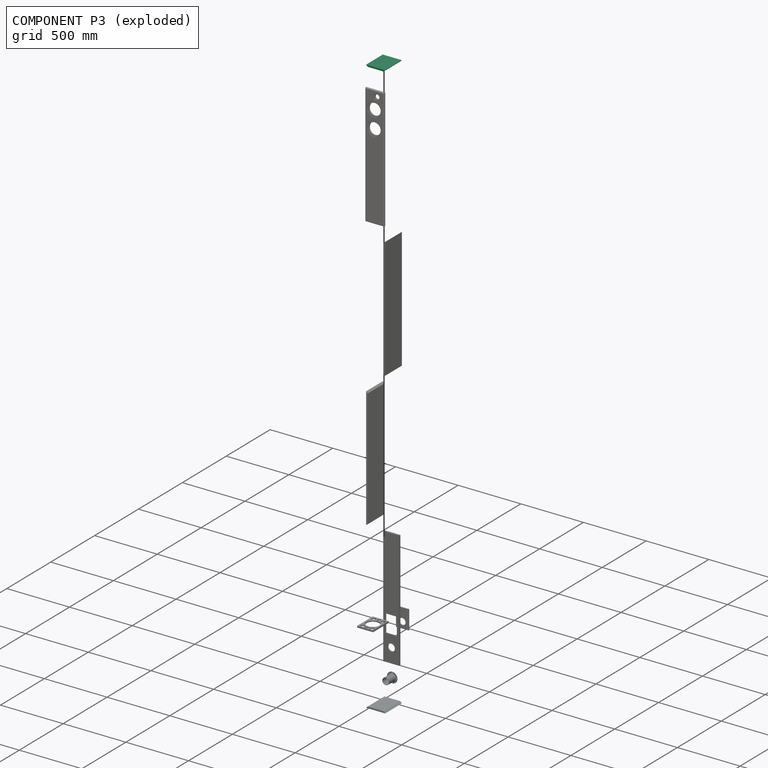
[diagram: component P3 — exploded]
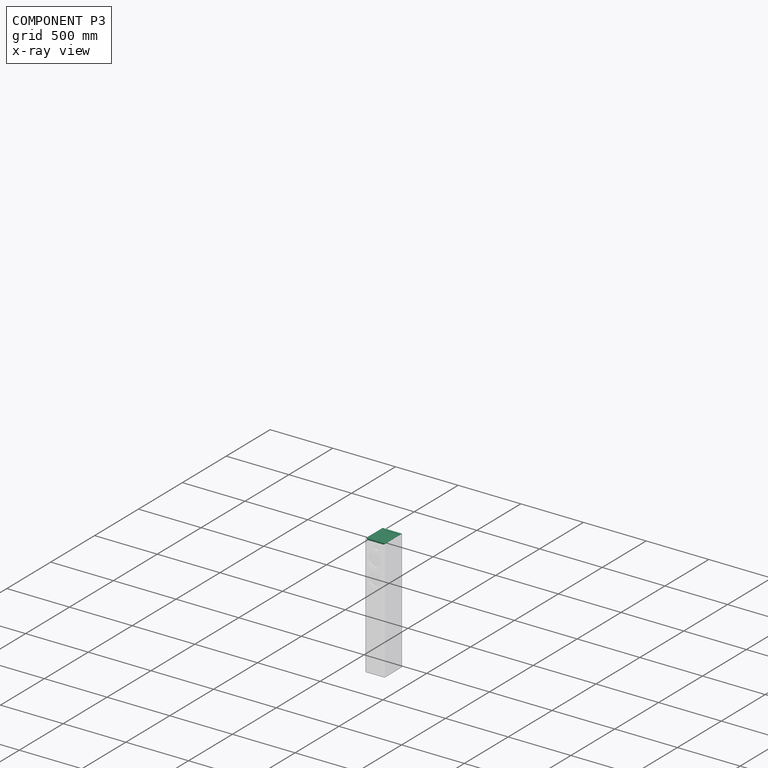
[diagram: component P3 — x-ray view]
COMPONENT P3 — recipe-attached ("top", modeled in this document).
Held by: resting contact with P4 (derived edge); resting contact with P5 (derived edge); resting contact with P6 (derived edge); resting contact with P7 (derived edge).
Construction recipe (the document's own serialized feature program — sketch geometry with constraints, then the solid features built on it; lengths are millimeters unless a unit is written):

FEATURE [Sketcher::SketchObject] Sketch005
  FullyConstrained = true
  MapMode = 5
  Placement = pos=(0,0,0) rot=(1,0,0;1.5708rad)
  expr: Constraints[10] = Spreadsheet.width
  expr: Constraints[7] = Spreadsheet.thickness
  expr: Constraints[8] = Spreadsheet.thickness
  expr: Constraints[9] = Spreadsheet.thickness
  sketch-geometry (4):
    g0: LineSegment StartX=0 StartY=0 StartZ=0 EndX=152.4 EndY=0 EndZ=0
    g1: LineSegment StartX=0 StartY=0 StartZ=0 EndX=12.7 EndY=12.7 EndZ=0
    g2: LineSegment StartX=152.4 StartY=0 StartZ=0 EndX=139.7 EndY=12.7 EndZ=0
    g3: LineSegment StartX=12.7 StartY=12.7 StartZ=0 EndX=139.7 EndY=12.7 EndZ=0
  constraints (11):
    c: Horizontal(g0)
    c: Coincident(g0,g-1)
    c: Coincident(g1,g0)
    c: Coincident(g2,g0)
    c: Coincident(g3,g1)
    c: Coincident(g3,g2)
    c: Horizontal(g3)
    c: DistanceY(g-1,g1) = 12.7
    c: DistanceX(g0,g1) = 12.7
    c: DistanceX(g2,g0) = 12.7
    c: DistanceX(g0,g0) = 152.4
FEATURE [PartDesign::Pad] Pad003
  Direction = (0,-1,2e-16)
  Length = 190.5
  Length2 = 10
  Placement = pos=(0,0,0) rot=(1,0,0;1.5708rad)
  Profile = -> Sketch005
  ReferenceAxis = -> Sketch005 [N_Axis]
  Type = 0
  expr: Length = Spreadsheet.depth - Spreadsheet.thickness
FEATURE [PartDesign::Body] Body003
  Group = -> [Sketch005,Pad003]
  Origin = -> Origin003
  Placement = pos=(0,0,0) rot=(0,1,0;3.14159rad)
  Tip = -> Pad003
PROVENANCE & LICENSES
Assembly and component geometry: a FreeCAD (.FCStd) document from a public repository crawl; components, placements and joints were extracted with FreeCAD and each solid tessellated.
Construction recipes: the document's own serialized feature recipes (and, for linked parts, the recipes of companion documents from the same project).
License: as declared in the source repository (recorded in the dataset sidecar).
Joints: native FreeCAD joints and A2plus constraints are mapped to standard mate types; edges marked 'derived from contact' connect touching components and are measured from the geometry, not modeled.
Verification: 9 of this assembly's 9 components carry a construction recipe (9 from this document itself); the rest are geometry-only. Every component's tessellation passed the extraction mesh gates (mesh-volume checksum against the B-rep where available, bounding-box inflation <= 2%).
Renders: orthographic iso camera (az 35 / el 25); the floor grid conveys scale (grid pitch printed in each image; no ruler). In the exploded view each component is displaced by its stored offset vector: the offsets alone carry the explosion direction (mate normal/axis signs are not orientation cues and do not encode it), and separation distances are assigned per mate-chain, not proportionally to assembly-order depth.
